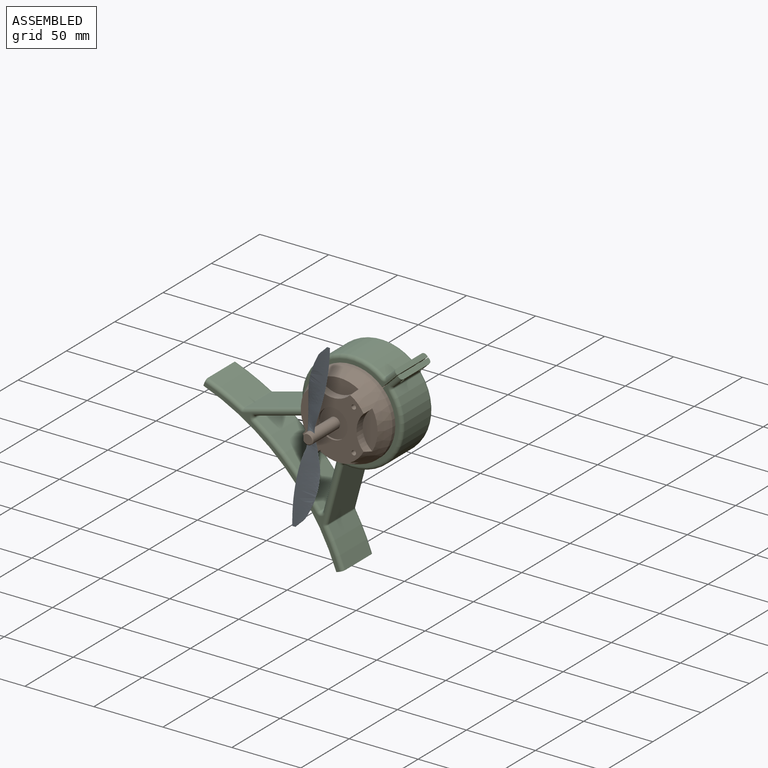
[diagram: assembled view]
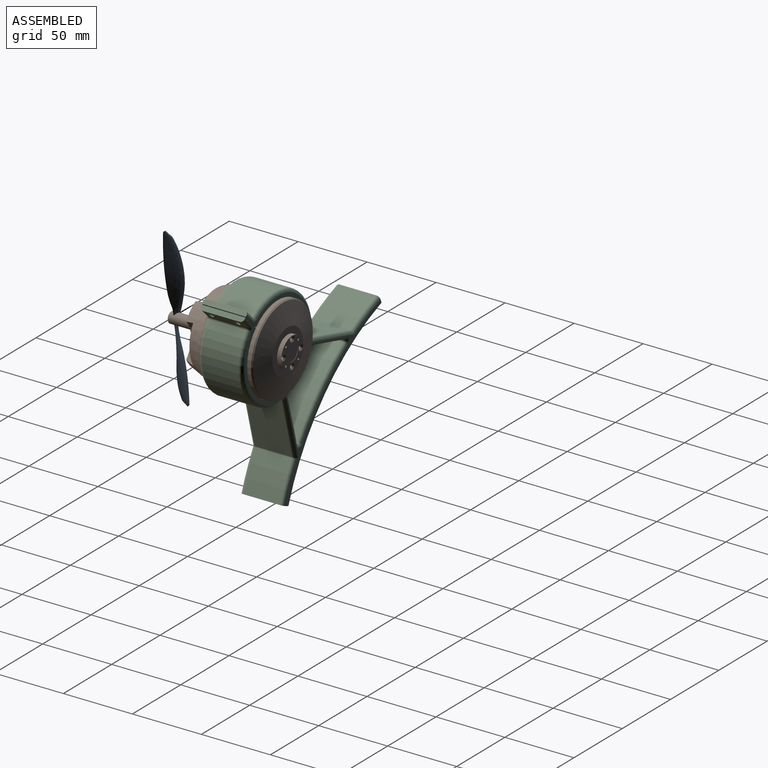
[diagram: assembled view, second angle]
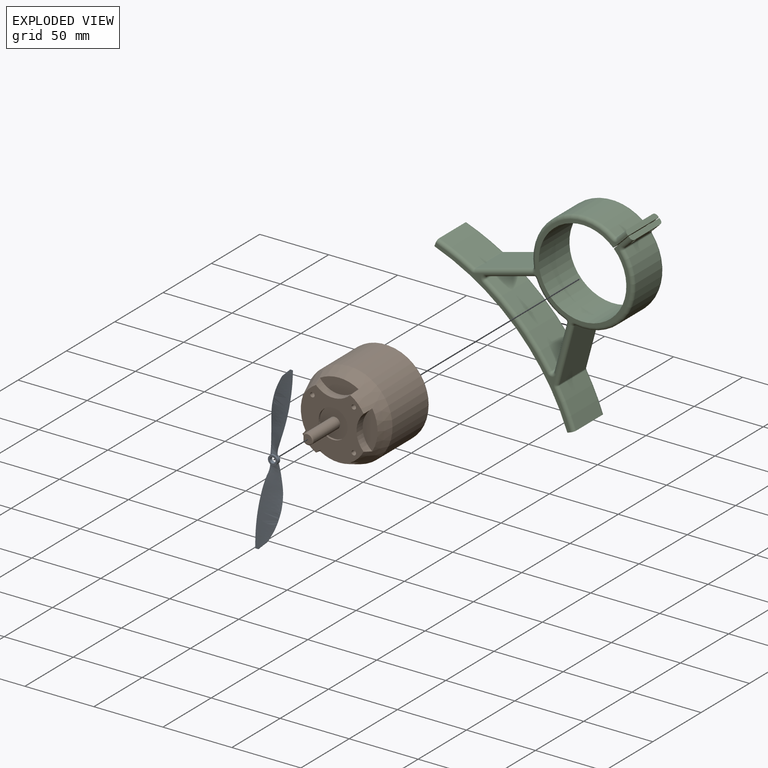
[diagram: exploded view]
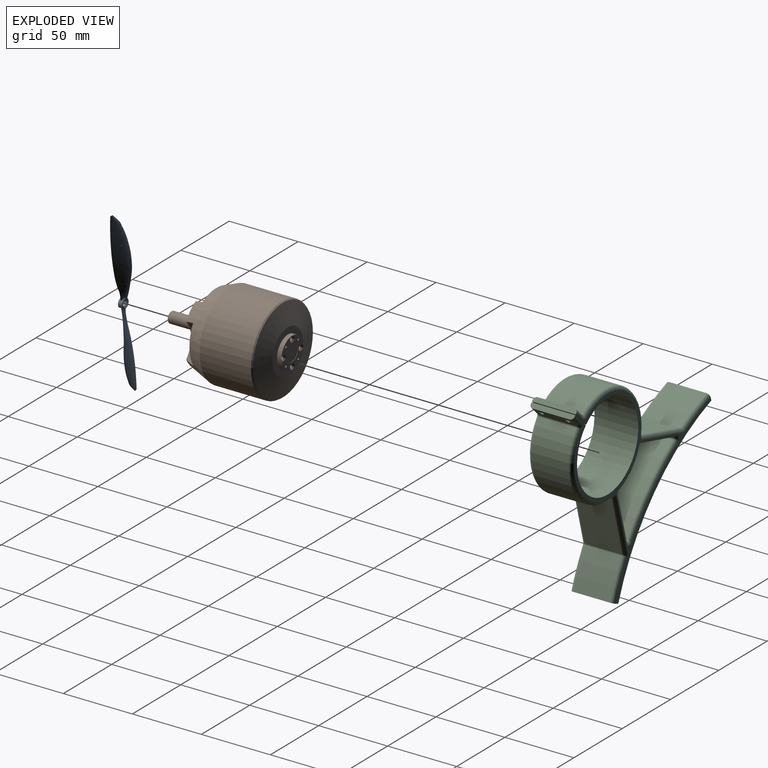
[diagram: exploded view, second angle]
ASSEMBLY  parts=3 mates=2
PART A: 10 faces, bbox 27.4x5x123.9 mm
  f0: bspline ~60.24x17.83mm, area 1309.7mm2, adj f1,f3
  f1: plane 2.37x0.47mm, normal (0,0,1), area 0.4mm2, adj f0
  f2: plane 6.82x6.82mm, normal (0,1,0), area 13.1mm2, adj f3,f7
  f3: cylinder r=3.41mm len=6.82mm, axis (0,-1,0), area 47.6mm2, adj f0,f2,f4,f9
  f4: plane 6.82x6.82mm, normal (0,-1,0), area 23.4mm2, adj f3,f5
  f5: cylinder r=2.05mm len=4.09mm, axis (0,-1,0), area 32.1mm2, adj f4,f6
  f6: plane 5.45x5.45mm, normal (0,1,0), area 10.2mm2, adj f5,f7
  f7: cylinder r=2.73mm len=5.45mm, axis (0,-1,0), area 7.8mm2, adj f2,f6
  f8: plane 2.37x0.47mm, normal (0,0,-1), area 0.4mm2, adj f9
  f9: bspline ~60.24x17.83mm, area 1311.6mm2, adj f3,f8
PART B: 53 faces, bbox 63.2x87.9x63.2 mm
  f0: cylinder r=4mm len=27.5mm, axis (0,-1,0), area 530.1mm2, adj f39,f50,f51,f52
  f1: plane 22.33x22.33mm, normal (0,1,0), area 214.1mm2, adj f2,f10,f13,f16,f19,f21,f23,f25
  f2: cylinder r=11.18mm len=22.35mm, axis (0,-1,0), area 222.9mm2, adj f1,f3,f10,f13,f16,f19
  f3: plane 31.75x31.75mm, normal (0,1,0), area 399.3mm2, adj f2,f4
  f4: cone r=31.62mm half-angle=76.8deg, axis (0,-1,0), area 2288.4mm2, adj f3,f49
  f5: cylinder r=31.62mm len=63.25mm, axis (0,-1,0), area 7401.1mm2, adj f6,f49
  f6: cone r=25.4mm half-angle=20.8deg, axis (0,1,0), area 2386mm2, adj f5,f7,f30,f31,f32,f33,f34,f35
  f7: plane 44.32x44.32mm, normal (0,-1,0), area 1078.5mm2, adj f6,f30,f32,f34,f36,f38,f42,f44
  f8: cone r=1.2mm half-angle=59deg, axis (0,1,0), area 5.3mm2, adj f9
  f9: cylinder r=1.2mm len=11.7mm, axis (0,1,0), area 88.2mm2, adj f8,f10
  f10: cone r=2.2mm half-angle=45deg, axis (0,1,0), area 15.1mm2, adj f1,f2,f9
  f11: cone r=1.2mm half-angle=59deg, axis (0,1,0), area 5.3mm2, adj f12
  f12: cylinder r=1.2mm len=11.7mm, axis (0,1,0), area 88.2mm2, adj f11,f13
  f13: cone r=2.2mm half-angle=45deg, axis (0,1,0), area 15.1mm2, adj f1,f2,f12
  f14: cone r=1.2mm half-angle=59deg, axis (0,1,0), area 5.3mm2, adj f15
  f15: cylinder r=1.2mm len=11.7mm, axis (0,1,0), area 88.2mm2, adj f14,f16
  f16: cone r=2.2mm half-angle=45deg, axis (0,1,0), area 15.1mm2, adj f1,f2,f15
  f17: cone r=1.2mm half-angle=59deg, axis (0,1,0), area 5.3mm2, adj f18
  f18: cylinder r=1.2mm len=11.7mm, axis (0,1,0), area 88.2mm2, adj f17,f19
  f19: cone r=2.2mm half-angle=45deg, axis (0,1,0), area 15.1mm2, adj f1,f2,f18
  f20: cone r=0.8mm half-angle=59deg, axis (0,1,0), area 2.3mm2, adj f21
  f21: cylinder r=0.8mm len=12.7mm, axis (0,1,0), area 63.8mm2, adj f1,f20
  f22: cone r=0.8mm half-angle=59deg, axis (0,1,0), area 2.3mm2, adj f23
  f23: cylinder r=0.8mm len=12.7mm, axis (0,1,0), area 63.8mm2, adj f1,f22
  f24: cone r=0.8mm half-angle=59deg, axis (0,1,0), area 2.3mm2, adj f25
  f25: cylinder r=0.8mm len=12.7mm, axis (0,1,0), area 63.8mm2, adj f1,f24
  f26: cone r=0.8mm half-angle=59deg, axis (0,1,0), area 2.3mm2, adj f27
  f27: cylinder r=0.8mm len=12.7mm, axis (0,1,0), area 63.8mm2, adj f1,f26
  f28: cylinder r=5.91mm len=11.81mm, axis (0,1,0), area 9.4mm2, adj f1,f29
  f29: plane 11.81x11.81mm, normal (0,1,0), area 109.6mm2, adj f28
  f30: cylinder r=17.56mm len=28.05mm, axis (0,-1,0), area 190.7mm2, adj f6,f7,f31
  f31: plane 28.05x10.79mm, normal (0,-1,0), area 209.2mm2, adj f6,f30
  f32: cylinder r=17.56mm len=28.05mm, axis (0,-1,0), area 190.7mm2, adj f6,f7,f33
  f33: plane 28.05x10.79mm, normal (0,-1,0), area 209.2mm2, adj f6,f32
  f34: cylinder r=17.56mm len=28.05mm, axis (0,-1,0), area 190.7mm2, adj f6,f7,f35
  f35: plane 28.05x10.79mm, normal (0,-1,0), area 209.2mm2, adj f6,f34
  f36: cylinder r=17.56mm len=28.05mm, axis (0,-1,0), area 190.7mm2, adj f6,f7,f37
  f37: plane 28.05x10.79mm, normal (0,-1,0), area 209.2mm2, adj f6,f36
  f38: cylinder r=10.48mm len=20.96mm, axis (0,-1,0), area 104.5mm2, adj f7,f39
  f39: plane 20.96x20.96mm, normal (0,-1,0), area 294.6mm2, adj f0,f38
  f40: plane 6.73x6.22mm, normal (0,-1,0), area 34.3mm2, adj f50,f52
  f41: cone r=1.65mm half-angle=59deg, axis (0,-1,0), area 10mm2, adj f42
  f42: cylinder r=1.65mm len=12.7mm, axis (0,-1,0), area 131.7mm2, adj f7,f41
  f43: cone r=1.65mm half-angle=59deg, axis (0,-1,0), area 10mm2, adj f44
  f44: cylinder r=1.65mm len=12.7mm, axis (0,-1,0), area 131.7mm2, adj f7,f43
  f45: cone r=1.65mm half-angle=59deg, axis (0,-1,0), area 10mm2, adj f46
  f46: cylinder r=1.65mm len=12.7mm, axis (0,-1,0), area 131.7mm2, adj f7,f45
  f47: cone r=1.65mm half-angle=59deg, axis (0,-1,0), area 10mm2, adj f48
  f48: cylinder r=1.65mm len=12.7mm, axis (0,-1,0), area 131.7mm2, adj f7,f47
  f49: cone r=31.62mm half-angle=31.8deg, axis (0,-1,0), area 230.6mm2, adj f4,f5
  f50: cone r=3.37mm half-angle=45deg, axis (0,1,0), area 16.3mm2, adj f0,f40,f52
  f51: plane 5.61x1.15mm, normal (0,-1,0), area 4.4mm2, adj f0,f52
  f52: plane 26.54x5.61mm, normal (-1,0,0), area 148.3mm2, adj f0,f40,f50,f51
PART C: 78 faces, bbox 147.2x147.2x31.8 mm
  f0: plane 70.91x70.91mm, normal (0,0,1), area 567mm2, adj f14,f15,f16,f17,f18,f52,f53,f54
  f1: plane 70.91x70.91mm, normal (0,0,-1), area 567mm2, adj f14,f15,f16,f17,f18,f38,f39,f40
  f2: cylinder r=1.27mm len=26.67mm, axis (0,0,-1), area 49.8mm2, adj f3,f31,f66,f76
  f3: plane 34.43x26.67mm, normal (0.26,0.97,0), area 950.7mm2, adj f2,f4,f42,f56
  f4: cylinder r=1.27mm len=26.67mm, axis (0,0,-1), area 77.7mm2, adj f3,f5,f67,f77
  f5: cylinder r=166.37mm len=46.99mm, axis (0,0,-1), area 1784.2mm2, adj f4,f6,f69,f75
  f6: cylinder r=1.27mm len=26.67mm, axis (0,0,-1), area 77.7mm2, adj f5,f7,f71,f73
  f7: plane 34.43x26.67mm, normal (-0.97,-0.26,0), area 950.7mm2, adj f6,f8,f49,f63
  f8: cylinder r=1.27mm len=26.67mm, axis (0,0,-1), area 49.8mm2, adj f7,f31,f70,f72
  f9: plane 41.37x26.67mm, normal (-0.26,-0.97,0), area 1142.3mm2, adj f10,f30,f42,f56
  f10: cylinder r=1.27mm len=26.67mm, axis (0,0,-1), area 49.8mm2, adj f9,f11,f41,f55
  f11: cylinder r=36.83mm len=59.17mm, axis (0,0,-1), area 2341.8mm2, adj f10,f12,f40,f54
  f12: cylinder r=1.27mm len=26.67mm, axis (0,0,-1), area 48.7mm2, adj f11,f13,f39,f53
  f13: plane 26.67x6.53mm, normal (-0.71,-0.71,0), area 223.5mm2, adj f12,f14,f35,f37,f38,f52
  f14: plane 31.75x2.51mm, normal (0.71,-0.71,0), area 110.1mm2, adj f0,f1,f13,f15,f38,f52
  f15: plane 31.75x10.78mm, normal (0.71,0.71,0), area 461.3mm2, adj f0,f1,f14,f16,f35,f37
  f16: cylinder r=31.75mm len=63.5mm, axis (0,0,-1), area 6317.7mm2, adj f0,f1,f15,f17
  f17: plane 31.75x10.78mm, normal (-0.71,-0.71,0), area 461.3mm2, adj f0,f1,f16,f18,f34,f36
  f18: plane 31.75x2.51mm, normal (0.71,-0.71,0), area 110.1mm2, adj f0,f1,f17,f19,f45,f59
  f19: plane 26.67x6.53mm, normal (0.71,0.71,0), area 223.5mm2, adj f18,f20,f34,f36,f45,f59
  f20: cylinder r=1.27mm len=26.67mm, axis (0,0,-1), area 48.7mm2, adj f19,f21,f46,f60
  f21: cylinder r=36.83mm len=59.17mm, axis (0,0,-1), area 2341.8mm2, adj f20,f22,f47,f61
  f22: cylinder r=1.27mm len=26.67mm, axis (0,0,-1), area 49.8mm2, adj f21,f23,f48,f62
  f23: plane 41.37x26.67mm, normal (0.97,0.26,0), area 1142.3mm2, adj f22,f24,f49,f63
  f24: cylinder r=1.27mm len=26.67mm, axis (0,0,-1), area 26.5mm2, adj f23,f25,f50,f64
  f25: cylinder r=166.37mm len=26.67mm, axis (0,0,-1), area 766.7mm2, adj f24,f26,f51,f65
  f26: plane 31.75x4.77mm, normal (0.34,0.94,0), area 158.5mm2, adj f25,f27,f32,f33,f51,f65
  f27: cylinder r=161.29mm len=96.4mm, axis (0,0,-1), area 4468.9mm2, adj f26,f28,f32,f33
  f28: plane 31.75x4.77mm, normal (-0.94,-0.34,0), area 158.5mm2, adj f27,f29,f32,f33,f44,f58
  f29: cylinder r=166.37mm len=26.67mm, axis (0,0,-1), area 766.7mm2, adj f28,f30,f44,f58
  f30: cylinder r=1.27mm len=26.67mm, axis (0,0,-1), area 26.5mm2, adj f9,f29,f43,f57
  f31: cylinder r=36.83mm len=26.67mm, axis (0,0,-1), area 831.8mm2, adj f2,f8,f68,f74
  f32: plane 98.79x98.79mm, normal (0,0,1), area 393.4mm2, adj f26,f27,f28,f56,f57,f58,f63,f64
  f33: plane 98.79x98.79mm, normal (0,0,-1), area 393.4mm2, adj f26,f27,f28,f42,f43,f44,f49,f50
  f34: cylinder r=1.9mm len=5.2mm, axis (-0.71,-0.71,0), area 42.4mm2, adj f17,f19
  f35: cylinder r=1.9mm len=5.2mm, axis (-0.71,-0.71,0), area 42.4mm2, adj f13,f15
  f36: cylinder r=1.9mm len=5.2mm, axis (-0.71,-0.71,0), area 42.4mm2, adj f17,f19
  f37: cylinder r=1.9mm len=5.2mm, axis (-0.71,-0.71,0), area 42.4mm2, adj f13,f15
  f38: cylinder r=2.54mm len=8.32mm, axis (0.71,-0.71,0), area 36.8mm2, adj f1,f13,f14,f39
  f39: torus R=3.81mm, axis (0,0,1), area 12.6mm2, adj f1,f12,f38,f40
  f40: torus R=34.29mm, axis (0,0,1), area 341.6mm2, adj f1,f11,f39,f41
  f41: torus R=3.81mm, axis (0,0,1), area 12.9mm2, adj f1,f10,f40,f42
  f42: cylinder r=2.54mm len=42.69mm, axis (0.97,-0.26,0), area 313.1mm2, adj f3,f9,f33,f41,f43,f66,f67
  f43: torus R=3.81mm, axis (0,0,1), area 6.9mm2, adj f30,f33,f42,f44
  f44: torus R=163.83mm, axis (0,0,1), area 114.1mm2, adj f28,f29,f33,f43
  f45: cylinder r=2.54mm len=8.32mm, axis (-0.71,0.71,0), area 36.8mm2, adj f1,f18,f19,f46
  f46: torus R=3.81mm, axis (0,0,1), area 12.6mm2, adj f1,f20,f45,f47
  f47: torus R=34.29mm, axis (0,0,1), area 341.6mm2, adj f1,f21,f46,f48
  f48: torus R=3.81mm, axis (0,0,1), area 12.9mm2, adj f1,f22,f47,f49
  f49: cylinder r=2.54mm len=42.69mm, axis (-0.26,0.97,0), area 313.1mm2, adj f7,f23,f33,f48,f50,f70,f71
  f50: torus R=3.81mm, axis (0,0,1), area 6.9mm2, adj f24,f33,f49,f51
  f51: torus R=163.83mm, axis (0,0,1), area 114.1mm2, adj f25,f26,f33,f50
  f52: cylinder r=2.54mm len=8.32mm, axis (-0.71,0.71,0), area 36.8mm2, adj f0,f13,f14,f53
  f53: torus R=3.81mm, axis (0,0,1), area 12.6mm2, adj f0,f12,f52,f54
  f54: torus R=34.29mm, axis (0,0,1), area 341.6mm2, adj f0,f11,f53,f55
  f55: torus R=3.81mm, axis (0,0,1), area 12.9mm2, adj f0,f10,f54,f56
  f56: cylinder r=2.54mm len=42.69mm, axis (-0.97,0.26,0), area 313.1mm2, adj f3,f9,f32,f55,f57,f76,f77
  f57: torus R=3.81mm, axis (0,0,1), area 6.9mm2, adj f30,f32,f56,f58
  f58: torus R=163.83mm, axis (0,0,1), area 114.1mm2, adj f28,f29,f32,f57
  f59: cylinder r=2.54mm len=8.32mm, axis (0.71,-0.71,0), area 36.8mm2, adj f0,f18,f19,f60
  f60: torus R=3.81mm, axis (0,0,1), area 12.6mm2, adj f0,f20,f59,f61
  f61: torus R=34.29mm, axis (0,0,1), area 341.6mm2, adj f0,f21,f60,f62
  f62: torus R=3.81mm, axis (0,0,1), area 12.9mm2, adj f0,f22,f61,f63
  f63: cylinder r=2.54mm len=42.69mm, axis (0.26,-0.97,0), area 313.1mm2, adj f7,f23,f32,f62,f64,f72,f73
  f64: torus R=3.81mm, axis (0,0,1), area 6.9mm2, adj f24,f32,f63,f65
  f65: torus R=163.83mm, axis (0,0,1), area 114.1mm2, adj f25,f26,f32,f64
  f66: torus R=3.81mm, axis (0,0,1), area 12.9mm2, adj f1,f2,f42,f68
  f67: torus R=3.81mm, axis (0,0,1), area 20.1mm2, adj f4,f33,f42,f69
  f68: torus R=34.29mm, axis (0,0,1), area 121.3mm2, adj f1,f31,f66,f70
  f69: torus R=163.83mm, axis (0,0,1), area 265.4mm2, adj f5,f33,f67,f71
  f70: torus R=3.81mm, axis (0,0,1), area 12.9mm2, adj f1,f8,f49,f68
  f71: torus R=3.81mm, axis (0,0,1), area 20.1mm2, adj f6,f33,f49,f69
  f72: torus R=3.81mm, axis (0,0,1), area 12.9mm2, adj f0,f8,f63,f74
  f73: torus R=3.81mm, axis (0,0,1), area 20.1mm2, adj f6,f32,f63,f75
  f74: torus R=34.29mm, axis (0,0,1), area 121.3mm2, adj f0,f31,f72,f76
  f75: torus R=163.83mm, axis (0,0,1), area 265.4mm2, adj f5,f32,f73,f77
  f76: torus R=3.81mm, axis (0,0,1), area 12.9mm2, adj f0,f2,f56,f74
  f77: torus R=3.81mm, axis (0,0,1), area 20.1mm2, adj f4,f32,f56,f75
PLACE A t=(-22.78,-12.1,0)mm
PLACE B t=(-25.05,-14.61,1.73)mm
PLACE C rot(axis=(-1,0,0),90deg) t=(-187.59,31.07,-160.82)mm
MATE cylindrical B.f0 <-> A.f3  axis (0,-1,0) through (-25.05,-0.23,1.73)mm
MATE revolute C.f11 <-> B.f6  axis (0,-1,0) through (-25.05,46.94,1.73)mm
